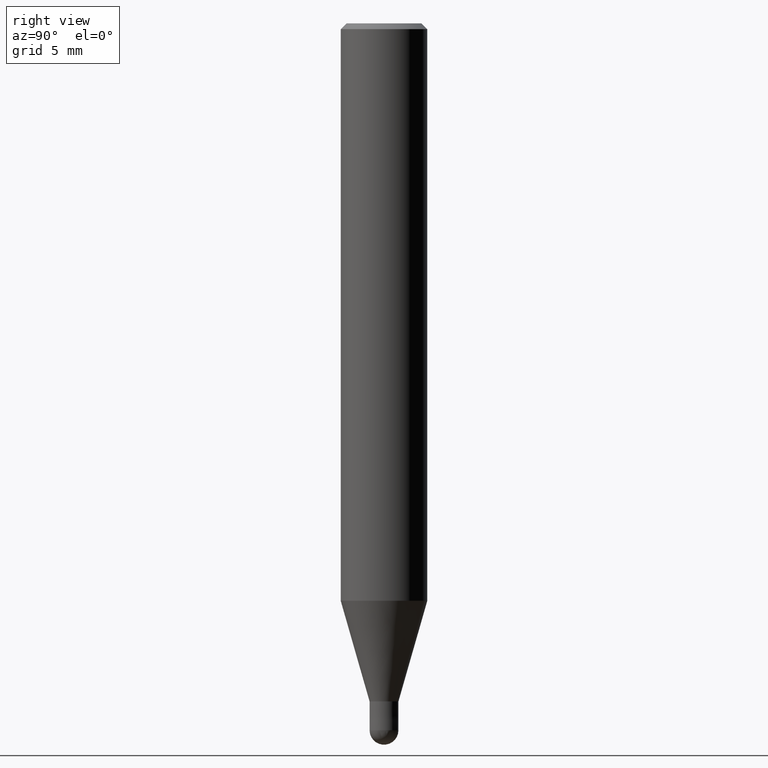
[diagram: clean part render]
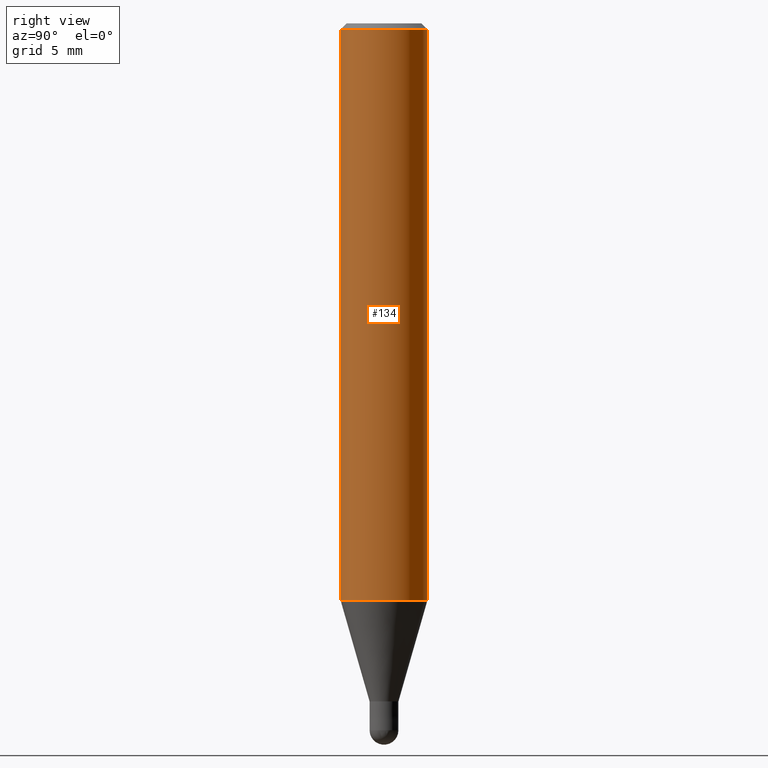
[diagram: same view with one face highlighted and labeled with its STEP entity id]
A machine part, right view. The second image highlights one B-rep face of the part: STEP entity #134.
In plain terms, the highlighted cylindrical surface (partial cylindrical patch) has radius 3 mm, axis along (-0, -0, 1).
Its self-contained STEP definition (entity closure, byte-faithful):
#100=VERTEX_POINT('',#231);
#126=EDGE_CURVE('',#100,#184,#258,.T.);
#134=ADVANCED_FACE('',(#266),#267,.T.);
#162=EDGE_CURVE('',#170,#182,#299,.T.);
#166=EDGE_CURVE('',#170,#184,#304,.T.);
#170=VERTEX_POINT('',#308);
#182=VERTEX_POINT('',#322);
#184=VERTEX_POINT('',#324);
#186=EDGE_CURVE('',#182,#100,#326,.T.);
#231=CARTESIAN_POINT('',(3.67381906146713E-016,-3.0,-40.025));
#258=LINE('',#400,#401);
#266=FACE_OUTER_BOUND('',#409,.T.);
#267=CYLINDRICAL_SURFACE('',#410,3.0);
#299=LINE('',#451,#452);
#304=CIRCLE('',#458,3.0);
#308=CARTESIAN_POINT('',(0.0,3.0,-0.399999999999999));
#322=CARTESIAN_POINT('',(0.0,3.0,-40.025));
#324=CARTESIAN_POINT('',(3.67381906146713E-016,-3.0,-0.399999999999999));
#326=CIRCLE('',#486,3.0);
#400=CARTESIAN_POINT('',(3.67381906146713E-016,-3.0,-20.2125));
#401=VECTOR('',#556,1.0);
#409=EDGE_LOOP('',(#562,#563,#564,#565));
#410=AXIS2_PLACEMENT_3D('',#566,#567,#568);
#451=CARTESIAN_POINT('',(-3.67381906146713E-016,3.0,-20.2125));
#452=VECTOR('',#613,1.0);
#458=AXIS2_PLACEMENT_3D('',#620,#621,#622);
#486=AXIS2_PLACEMENT_3D('',#644,#645,#646);
#556=DIRECTION('',(-0.0,-0.0,1.0));
#562=ORIENTED_EDGE('',*,*,#162,.F.);
#563=ORIENTED_EDGE('',*,*,#166,.T.);
#564=ORIENTED_EDGE('',*,*,#126,.F.);
#565=ORIENTED_EDGE('',*,*,#186,.F.);
#566=CARTESIAN_POINT('',(0.0,0.0,-20.2125));
#567=DIRECTION('',(-0.0,-0.0,1.0));
#568=DIRECTION('',(0.0,1.0,0.0));
#613=DIRECTION('',(0.0,0.0,-1.0));
#620=CARTESIAN_POINT('',(0.0,0.0,-0.399999999999999));
#621=DIRECTION('',(0.0,0.0,-1.0));
#622=DIRECTION('',(0.0,1.0,0.0));
#644=CARTESIAN_POINT('',(0.0,0.0,-40.025));
#645=DIRECTION('',(0.0,0.0,-1.0));
#646=DIRECTION('',(0.0,1.0,0.0));